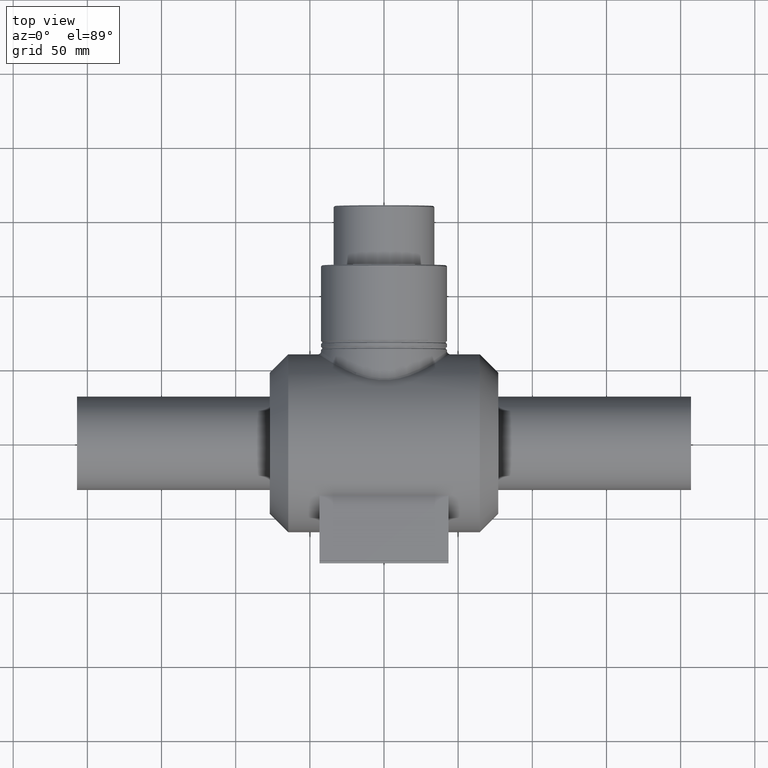
[diagram: clean part render]
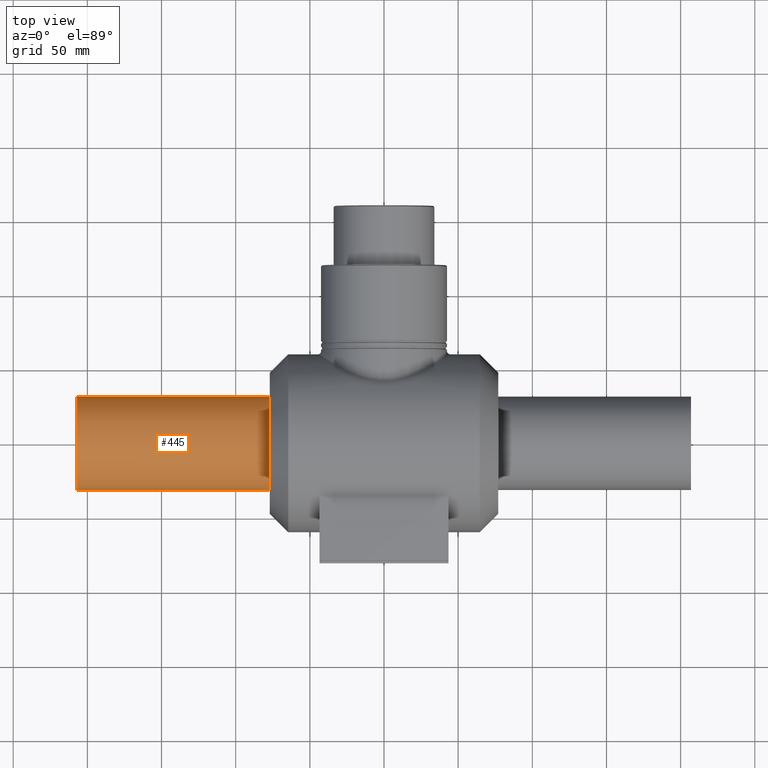
[diagram: same view with one face highlighted and labeled with its STEP entity id]
A machine part, top view. The second image highlights one B-rep face of the part: STEP entity #445.
In plain terms, the highlighted cylindrical surface (bore or boss wall) has radius 31.5 mm, axis along (1, 0, 0).
Its self-contained STEP definition (entity closure, byte-faithful):
#102=FACE_BOUND('',#200,.T.);
#111=CYLINDRICAL_SURFACE('',#505,31.5);
#143=FACE_OUTER_BOUND('',#199,.T.);
#199=EDGE_LOOP('',(#410));
#200=EDGE_LOOP('',(#411));
#220=CIRCLE('',#487,31.5);
#228=CIRCLE('',#504,31.5);
#259=VERTEX_POINT('',#923);
#267=VERTEX_POINT('',#948);
#307=EDGE_CURVE('',#259,#259,#220,.T.);
#315=EDGE_CURVE('',#267,#267,#228,.T.);
#410=ORIENTED_EDGE('',*,*,#307,.F.);
#411=ORIENTED_EDGE('',*,*,#315,.T.);
#445=ADVANCED_FACE('',(#143,#102),#111,.T.);
#487=AXIS2_PLACEMENT_3D('',#924,#606,#607);
#504=AXIS2_PLACEMENT_3D('',#949,#640,#641);
#505=AXIS2_PLACEMENT_3D('',#950,#642,#643);
#606=DIRECTION('center_axis',(1.,0.,0.));
#607=DIRECTION('ref_axis',(0.,0.,-1.));
#640=DIRECTION('center_axis',(1.,0.,0.));
#641=DIRECTION('ref_axis',(0.,0.,-1.));
#642=DIRECTION('center_axis',(1.,0.,0.));
#643=DIRECTION('ref_axis',(0.,1.,0.));
#923=CARTESIAN_POINT('',(-77.,31.5,0.));
#924=CARTESIAN_POINT('Origin',(-77.,0.,0.));
#948=CARTESIAN_POINT('',(-207.,31.5,0.));
#949=CARTESIAN_POINT('Origin',(-207.,0.,0.));
#950=CARTESIAN_POINT('Origin',(-142.,0.,0.));